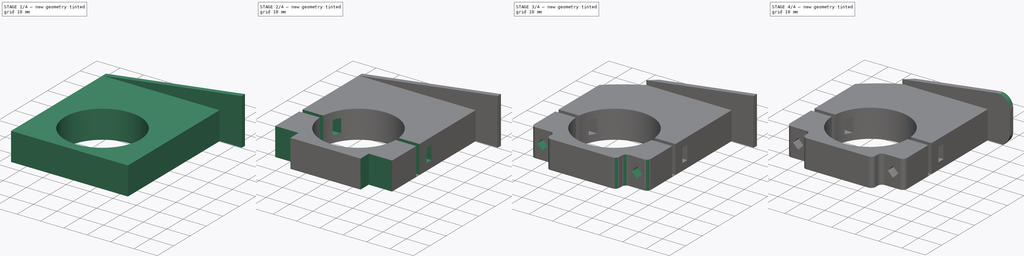
[diagram: build sequence overview — one tinted view per stage of 4, left to right]
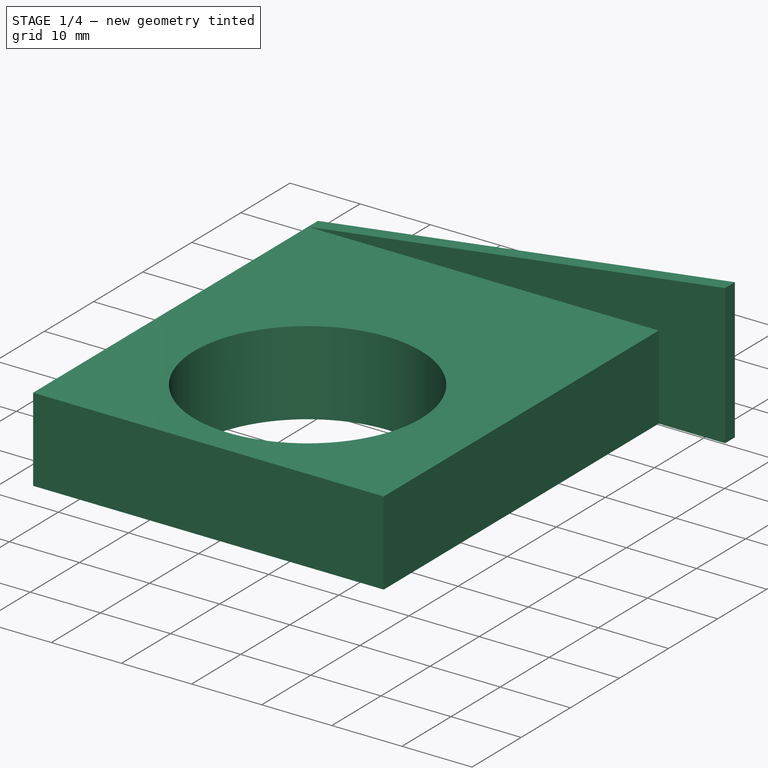
[diagram: stage 1 of 4 — iso view after this stage's code; geometry added in this stage tinted green]
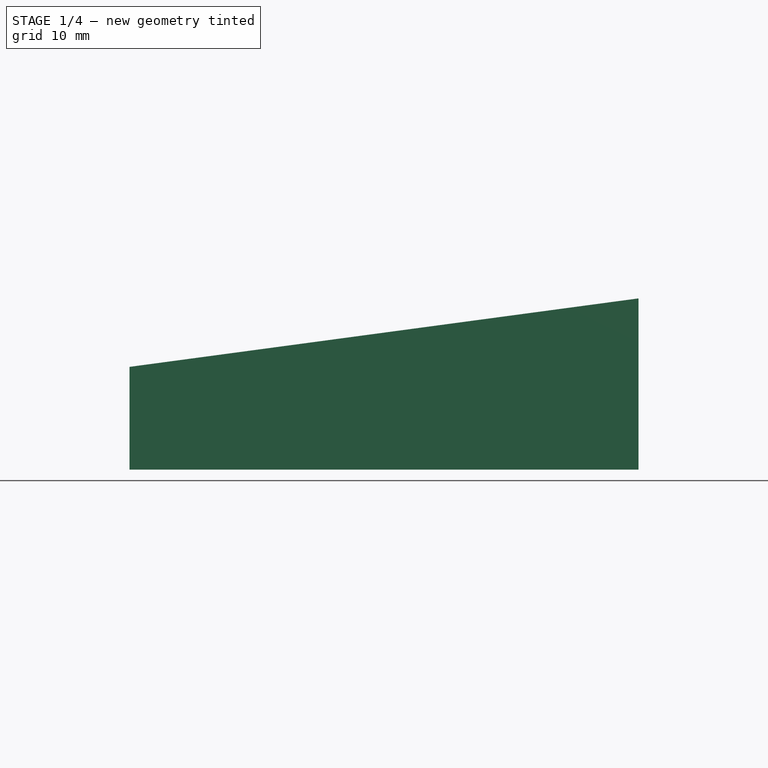
[diagram: stage 1 of 4 — front view after this stage's code; geometry added in this stage tinted green]
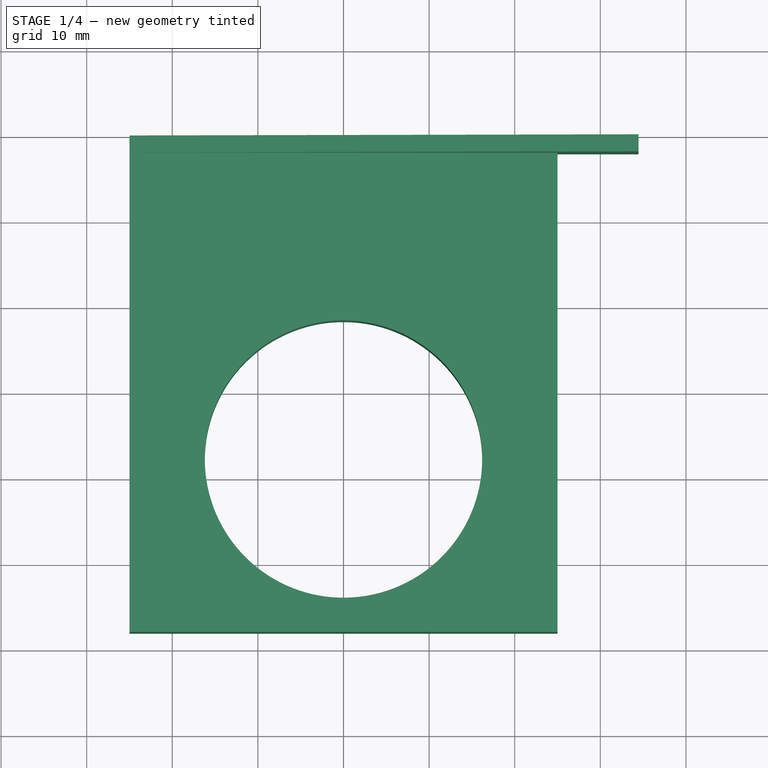
[diagram: stage 1 of 4 — top view after this stage's code; geometry added in this stage tinted green]
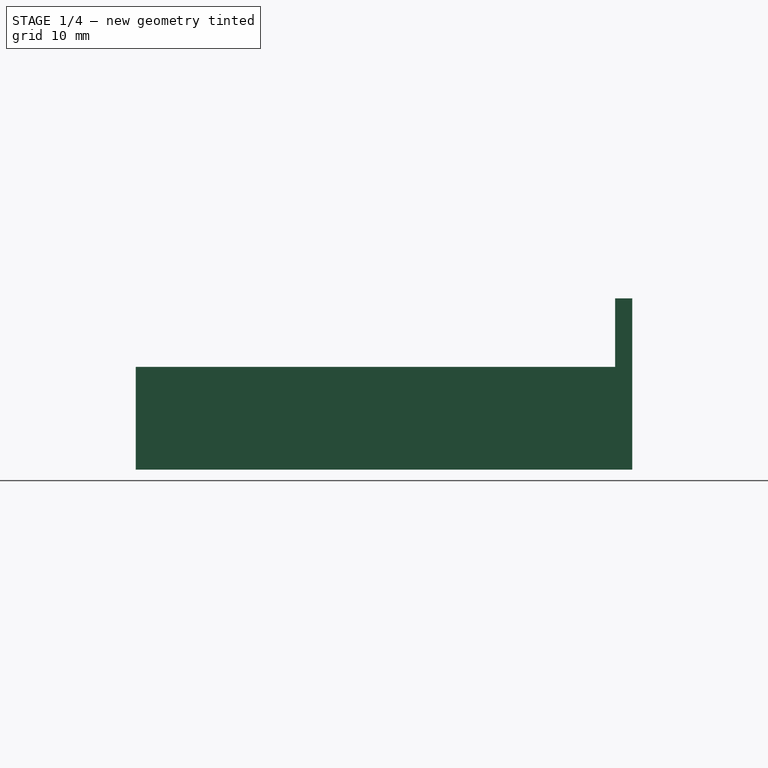
[diagram: stage 1 of 4 — right view after this stage's code; geometry added in this stage tinted green]
FCSTD DOCUMENT  (FreeCAD 0.16R)
Label: cargiblock2-nlg
License: All rights reserved
LicenseURL: http://en.wikipedia.org/wiki/All_rights_reserved
objects: Sketcher::SketchObject×8, PartDesign::Pocket×6, PartDesign::Fillet×3, PartDesign::Pad×2, PartDesign::Chamfer×1
note: 28 computed .brp shape members not serialized (recipe doc carries the construction recipe); baked Part::Feature solids carry a one-line shape summary decoded from their .brp

FEATURE [Sketcher::SketchObject] Sketch
  sketch-geometry (4):
    g0: LineSegment StartX=-25 StartY=28 StartZ=0 EndX=25 EndY=28 EndZ=0
    g1: LineSegment StartX=25 StartY=28 StartZ=0 EndX=25 EndY=-28 EndZ=0
    g2: LineSegment StartX=25 StartY=-28 StartZ=0 EndX=-25 EndY=-28 EndZ=0
    g3: LineSegment StartX=-25 StartY=-28 StartZ=0 EndX=-25 EndY=28 EndZ=0
  constraints (11):
    c: Coincident(g0,g1)
    c: Coincident(g1,g2)
    c: Coincident(g2,g3)
    c: Coincident(g3,g0)
    c: Horizontal(g0)
    c: Horizontal(g2)
    c: Vertical(g1)
    c: Vertical(g3)
    c: Symmetric(g1,g0,g-1)
    c: Distance(g2) = 50
    c: Distance(g1) = 56
FEATURE [PartDesign::Pad] Pad
  Length = 12
  Length2 = 100
  Sketch = -> Sketch
  Type = 0
FEATURE [Sketcher::SketchObject] Sketch001
  ExternalGeometry = -> [Pad]
  Placement = pos=(0,0,12) rot=(0,0,1;0rad)
  Support = -> Pad [Face6]
  sketch-geometry (1):
    g0: Circle CenterX=0 CenterY=-7.8 CenterZ=0 NormalX=0 NormalY=0 NormalZ=1 Radius=16.2
  constraints (3):
    c: PointOnObject(g0,g-2)
    c: Radius(g0) = 16.2
    c: Distance(g0,g-3) = 20.2
FEATURE [PartDesign::Pocket] Pocket
  Length = 5
  Sketch = -> Sketch001
  Type = 1
FEATURE [Sketcher::SketchObject] Sketch009
  Placement = pos=(0,28,0) rot=(0,0.707107,0.707107;3.14159rad)
  Support = -> Pocket [Face1]
  sketch-geometry (4):
    g0: LineSegment StartX=25 StartY=12 StartZ=0 EndX=-34.4643 EndY=20 EndZ=0
    g1: LineSegment StartX=-34.4643 StartY=20 StartZ=0 EndX=-34.4643 EndY=0 EndZ=0
    g2: LineSegment StartX=-34.4643 StartY=0 StartZ=0 EndX=25 EndY=0 EndZ=0
    g3: LineSegment StartX=25 StartY=0 StartZ=0 EndX=25 EndY=12 EndZ=0
  constraints (7):
    c: Coincident(g0,g1)
    c: Vertical(g1)
    c: Coincident(g1,g2)
    c: Coincident(g2,g3)
    c: Coincident(g3,g0)
    c: Distance(g0) = 60
    c: Distance(g1) = 20
FEATURE [PartDesign::Pad] Pad001
  Length = 2
  Length2 = 100
  Sketch = -> Sketch009
  Type = 0
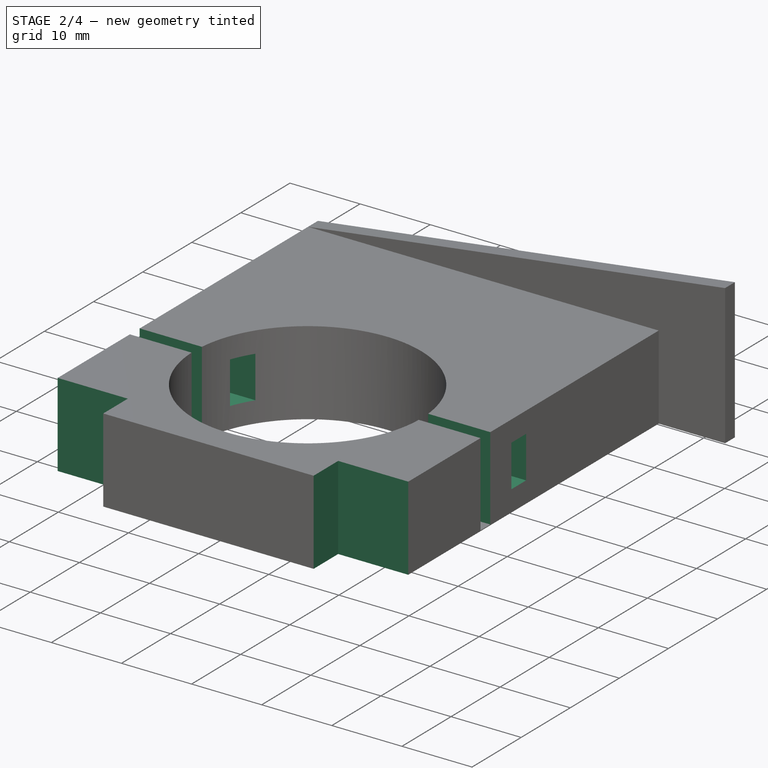
[diagram: stage 2 of 4 — iso view after this stage's code; geometry added in this stage tinted green]
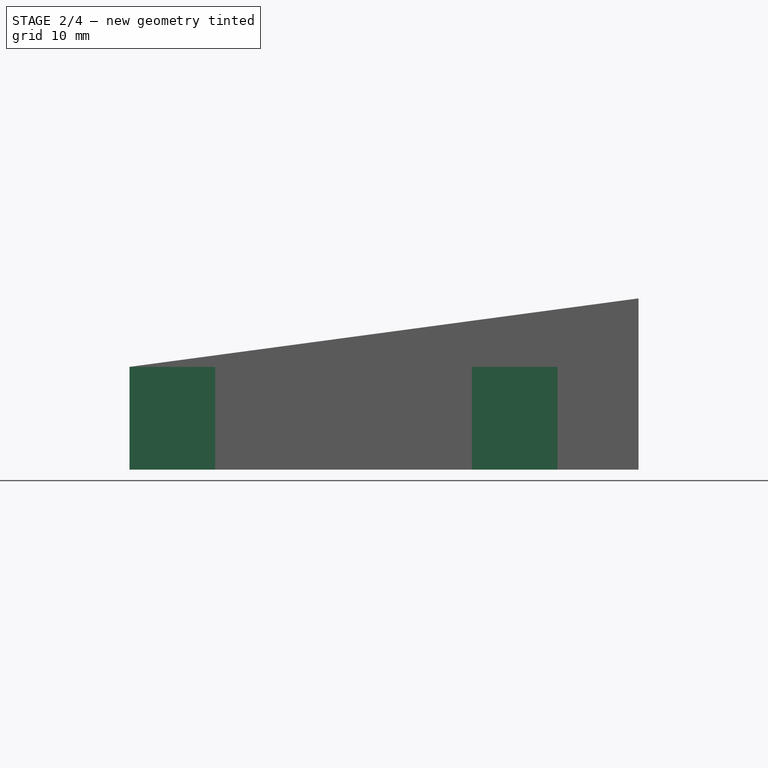
[diagram: stage 2 of 4 — front view after this stage's code; geometry added in this stage tinted green]
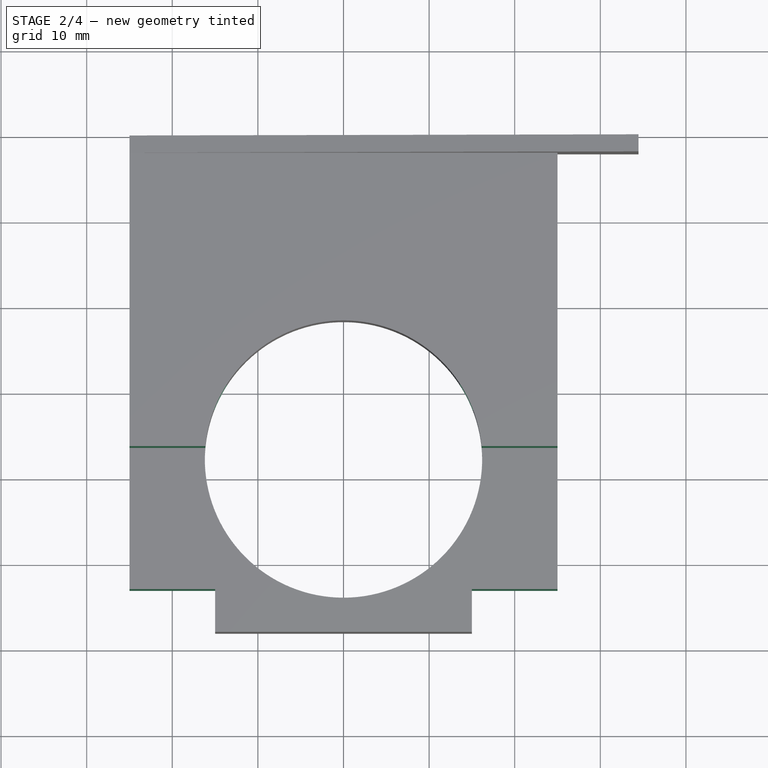
[diagram: stage 2 of 4 — top view after this stage's code; geometry added in this stage tinted green]
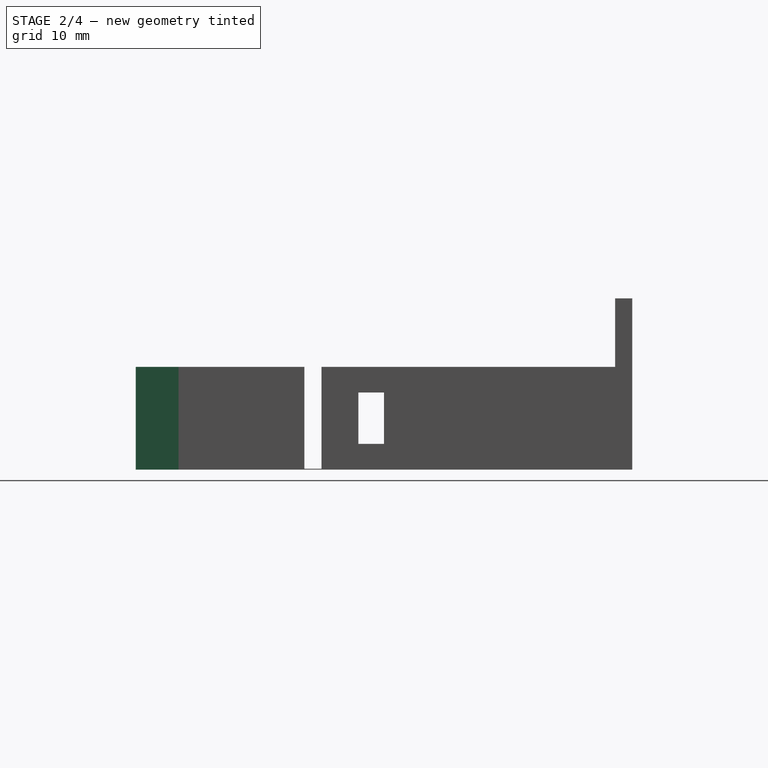
[diagram: stage 2 of 4 — right view after this stage's code; geometry added in this stage tinted green]
FEATURE [Sketcher::SketchObject] Sketch004
  Placement = pos=(0,0,12) rot=(0,0,1;0rad)
  Support = -> Pad001 [Face5]
  sketch-geometry (4):
    g0: LineSegment StartX=-36.7102 StartY=-6.29664 StartZ=0 EndX=35.607 EndY=-6.29664 EndZ=0
    g1: LineSegment StartX=35.607 StartY=-6.29664 StartZ=0 EndX=35.607 EndY=-8.29664 EndZ=0
    g2: LineSegment StartX=35.607 StartY=-8.29664 StartZ=0 EndX=-36.7102 EndY=-8.29664 EndZ=0
    g3: LineSegment StartX=-36.7102 StartY=-8.29664 StartZ=0 EndX=-36.7102 EndY=-6.29664 EndZ=0
  constraints (9):
    c: Coincident(g0,g1)
    c: Coincident(g1,g2)
    c: Coincident(g2,g3)
    c: Coincident(g3,g0)
    c: Horizontal(g0)
    c: Horizontal(g2)
    c: Vertical(g1)
    c: Vertical(g3)
    c: Distance(g1) = 2
FEATURE [PartDesign::Pocket] Pocket001
  Length = 11.9
  Sketch = -> Sketch004
  Type = 0
FEATURE [Sketcher::SketchObject] Sketch005
  Placement = pos=(0,-28,0) rot=(1,0,0;1.5708rad)
  Support = -> Pocket001 [Face1]
  sketch-geometry (8):
    g0: LineSegment StartX=-40.0409 StartY=13.5056 StartZ=0 EndX=-15 EndY=13.5056 EndZ=0
    g1: LineSegment StartX=-15 StartY=13.5056 StartZ=0 EndX=-15 EndY=-4.18064 EndZ=0
    g2: LineSegment StartX=-15 StartY=-4.18064 StartZ=0 EndX=-40.0409 EndY=-4.18064 EndZ=0
    g3: LineSegment StartX=-40.0409 StartY=-4.18064 StartZ=0 EndX=-40.0409 EndY=13.5056 EndZ=0
    g4: LineSegment StartX=15 StartY=21.4233 StartZ=0 EndX=27.2081 EndY=21.4233 EndZ=0
    g5: LineSegment StartX=27.2081 StartY=21.4233 StartZ=0 EndX=27.2081 EndY=-29.1676 EndZ=0
    g6: LineSegment StartX=27.2081 StartY=-29.1676 StartZ=0 EndX=15 EndY=-29.1676 EndZ=0
    g7: LineSegment StartX=15 StartY=-29.1676 StartZ=0 EndX=15 EndY=21.4233 EndZ=0
  constraints (16):
    c: Coincident(g0,g1)
    c: Coincident(g1,g2)
    c: Coincident(g2,g3)
    c: Coincident(g3,g0)
    c: Horizontal(g0)
    c: Horizontal(g2)
    c: Vertical(g1)
    c: Vertical(g3)
    c: Coincident(g4,g5)
    c: Coincident(g5,g6)
    c: Coincident(g6,g7)
    c: Coincident(g7,g4)
    c: Horizontal(g4)
    c: Horizontal(g6)
    c: Vertical(g5)
    c: Vertical(g7)
FEATURE [PartDesign::Pocket] Pocket002
  Length = 5
  Sketch = -> Sketch005
  Type = 0
FEATURE [Sketcher::SketchObject] Sketch003
  Placement = pos=(25,0,0) rot=(0.57735,0.57735,0.57735;2.0944rad)
  Support = -> Pocket002 [Face10]
  sketch-geometry (4):
    g0: LineSegment StartX=-2 StartY=9 StartZ=0 EndX=1 EndY=9 EndZ=0
    g1: LineSegment StartX=1 StartY=9 StartZ=0 EndX=1 EndY=3 EndZ=0
    g2: LineSegment StartX=1 StartY=3 StartZ=0 EndX=-2 EndY=3 EndZ=0
    g3: LineSegment StartX=-2 StartY=3 StartZ=0 EndX=-2 EndY=9 EndZ=0
  constraints (12):
    c: Coincident(g0,g1)
    c: Coincident(g1,g2)
    c: Coincident(g2,g3)
    c: Coincident(g3,g0)
    c: Horizontal(g0)
    c: Horizontal(g2)
    c: Vertical(g1)
    c: Vertical(g3)
    c: Distance(g3) = 6
    c: Distance(g2) = 3
    c: DistanceY(g-1,g1) = 3
    c: DistanceX(g-2,g0) = -2
FEATURE [PartDesign::Pocket] Pocket003
  Length = 5
  Sketch = -> Sketch003
  Type = 1
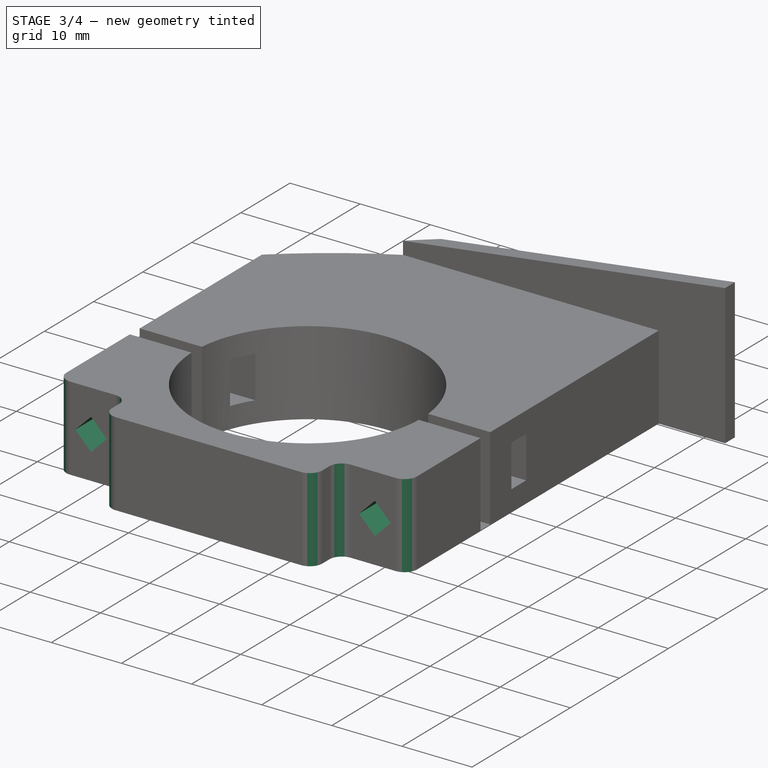
[diagram: stage 3 of 4 — iso view after this stage's code; geometry added in this stage tinted green]
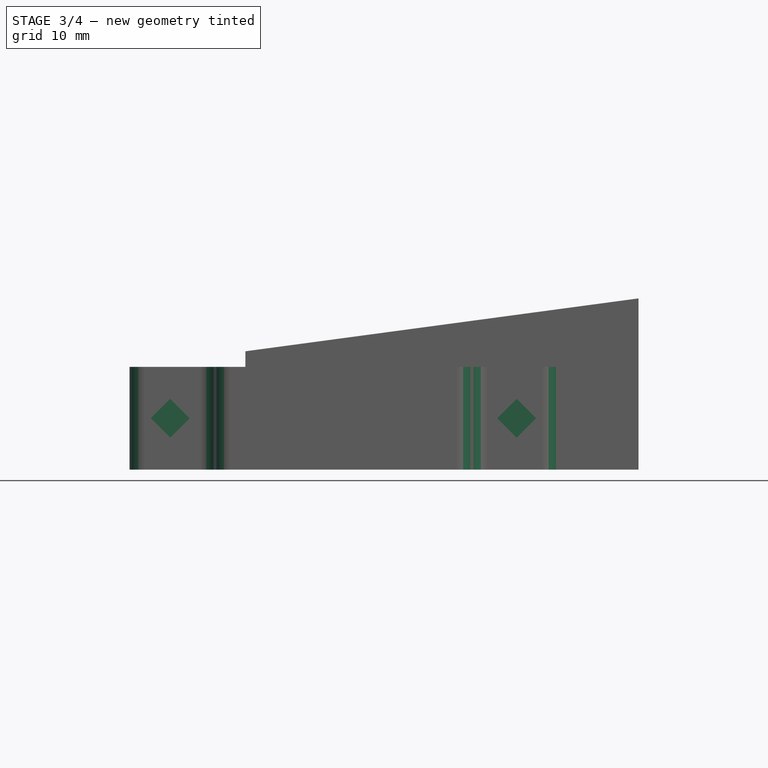
[diagram: stage 3 of 4 — front view after this stage's code; geometry added in this stage tinted green]
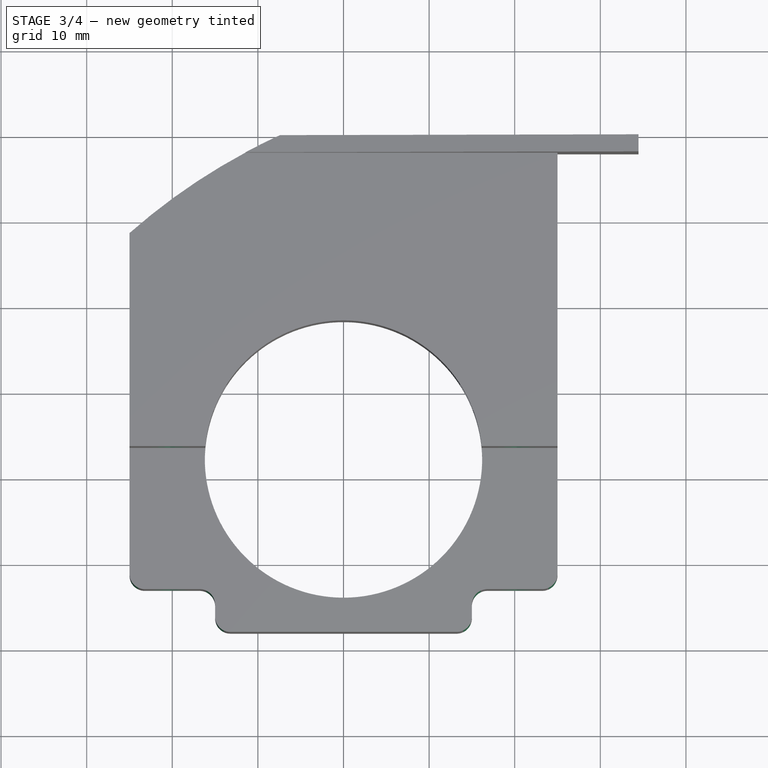
[diagram: stage 3 of 4 — top view after this stage's code; geometry added in this stage tinted green]
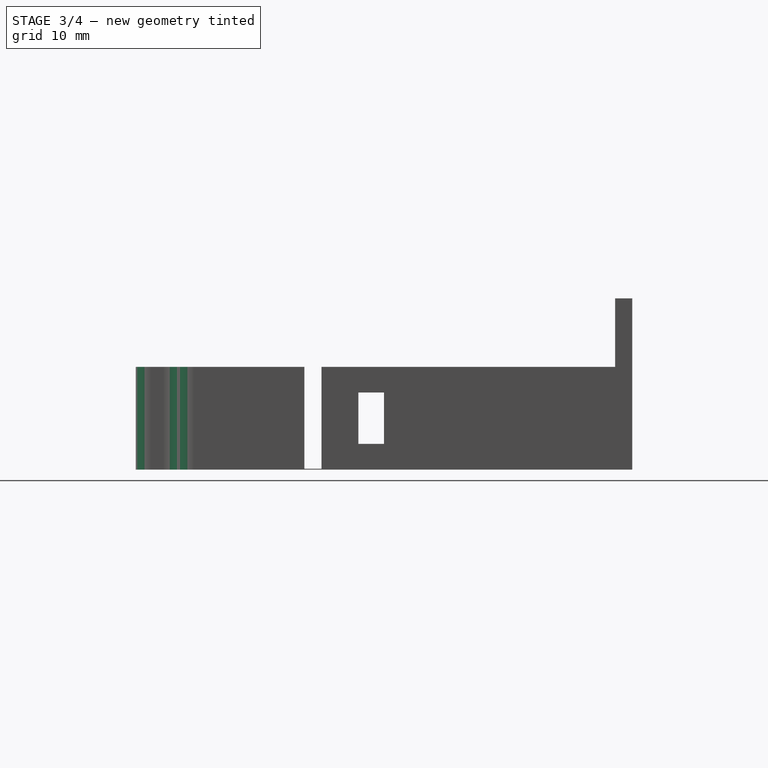
[diagram: stage 3 of 4 — right view after this stage's code; geometry added in this stage tinted green]
FEATURE [Sketcher::SketchObject] Sketch002
  Placement = pos=(0,-23,0) rot=(1,0,0;1.5708rad)
  Support = -> Pocket003 [Face8]
  sketch-geometry (8):
    g0: LineSegment StartX=-22.5 StartY=6 StartZ=0 EndX=-20.2373 EndY=8.26274 EndZ=0
    g1: LineSegment StartX=-20.2373 StartY=8.26274 StartZ=0 EndX=-17.9745 EndY=6 EndZ=0
    g2: LineSegment StartX=-17.9745 StartY=6 StartZ=0 EndX=-20.2373 EndY=3.73726 EndZ=0
    g3: LineSegment StartX=-20.2373 StartY=3.73726 StartZ=0 EndX=-22.5 EndY=6 EndZ=0
    g4: LineSegment StartX=17.9745 StartY=6 StartZ=0 EndX=20.2373 EndY=8.26274 EndZ=0
    g5: LineSegment StartX=20.2373 StartY=8.26274 StartZ=0 EndX=22.5 EndY=6 EndZ=0
    g6: LineSegment StartX=22.5 StartY=6 StartZ=0 EndX=20.2373 EndY=3.73726 EndZ=0
    g7: LineSegment StartX=20.2373 StartY=3.73726 StartZ=0 EndX=17.9745 EndY=6 EndZ=0
  constraints (20):
    c: Coincident(g0,g1)
    c: Coincident(g1,g2)
    c: Coincident(g2,g3)
    c: Coincident(g3,g0)
    c: Coincident(g4,g5)
    c: Coincident(g5,g6)
    c: Coincident(g6,g7)
    c: Coincident(g7,g4)
    c: Equal(g5,g6)
    c: Equal(g6,g2)
    c: Equal(g2,g3)
    c: Distance(g5) = 3.2
    c: Perpendicular(g1,g2)
    c: Perpendicular(g5,g6)
    c: Perpendicular(g4,g7)
    c: Perpendicular(g0,g3)
    c: Equal(g7,g5)
    c: Equal(g0,g2)
    c: Angle(g4) = 0.785398
    c: Angle(g0) = 0.785398
FEATURE [PartDesign::Pocket] Pocket004
  Length = 35
  Sketch = -> Sketch002
  Type = 0
FEATURE [PartDesign::Fillet] Fillet
  Base = -> Pocket004 [Edge4,Edge23,Edge42,Edge2,Edge13,Edge28]
  Radius = 1.8
FEATURE [Sketcher::SketchObject] Sketch010
  Placement = pos=(0,0,0) rot=(1,0,0;3.14159rad)
  Support = -> Fillet [Face2]
  sketch-geometry (3):
    g0: ArcOfCircle CenterX=22.3007 CenterY=35.0589 CenterZ=0 NormalX=0 NormalY=0 NormalZ=1 Radius=71.5282 StartAngle=3.77489 EndAngle=4.59259
    g1: LineSegment StartX=13.7519 StartY=-35.9566 StartZ=0 EndX=-64.8306 EndY=-41.4878 EndZ=0
    g2: LineSegment StartX=-64.8306 StartY=-41.4878 StartZ=0 EndX=-35.3566 EndY=-7.27204 EndZ=0
  constraints (3):
    c: Coincident(g0,g1)
    c: Coincident(g1,g2)
    c: Coincident(g2,g0)
FEATURE [PartDesign::Pocket] Pocket005
  Length = 5
  Sketch = -> Sketch010
  Type = 1
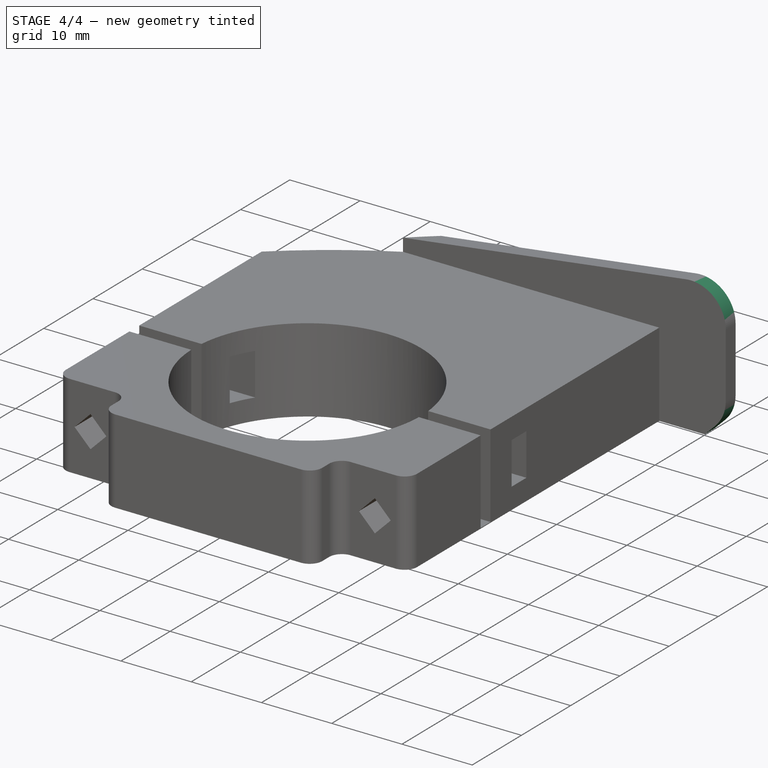
[diagram: stage 4 of 4 — iso view after this stage's code; geometry added in this stage tinted green]
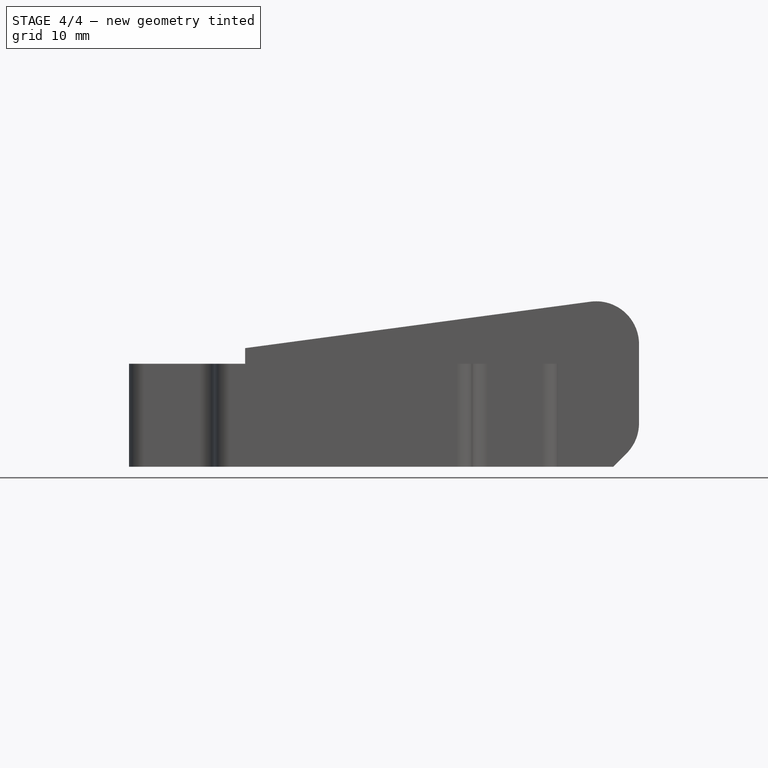
[diagram: stage 4 of 4 — front view after this stage's code; geometry added in this stage tinted green]
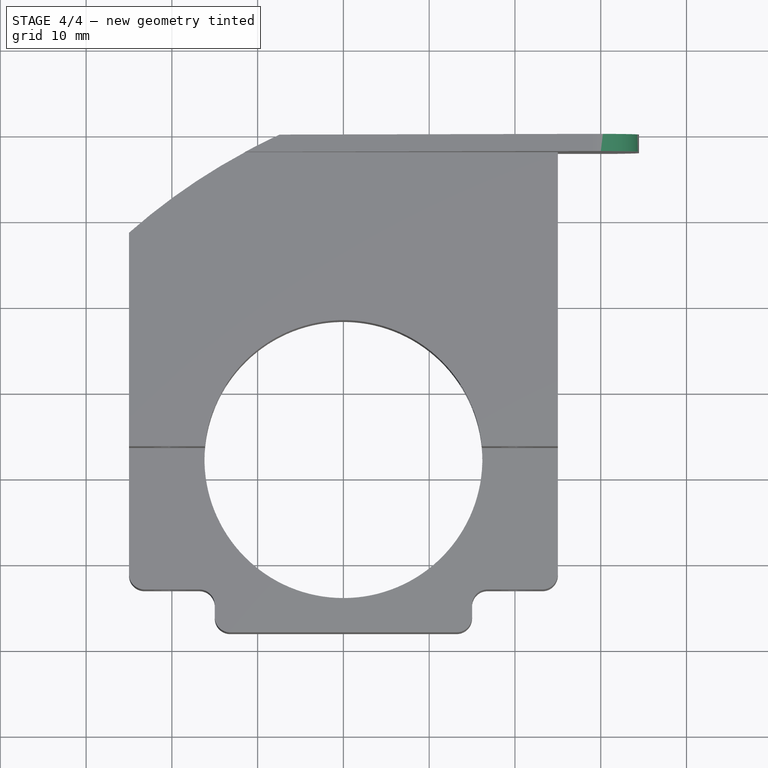
[diagram: stage 4 of 4 — top view after this stage's code; geometry added in this stage tinted green]
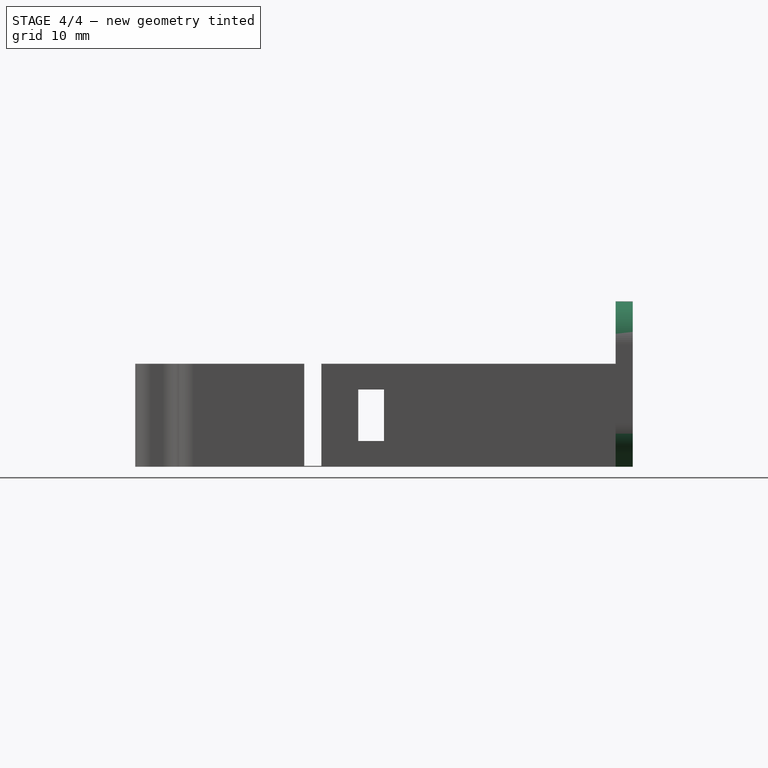
[diagram: stage 4 of 4 — right view after this stage's code; geometry added in this stage tinted green]
FEATURE [PartDesign::Chamfer] Chamfer
  Base = -> Pocket005 [Edge65]
  Size = 3
FEATURE [PartDesign::Fillet] Fillet001
  Base = -> Chamfer [Edge45]
  Radius = 5
FEATURE [PartDesign::Fillet] Fillet002
  Base = -> Fillet001 [Edge10]
  Radius = 5
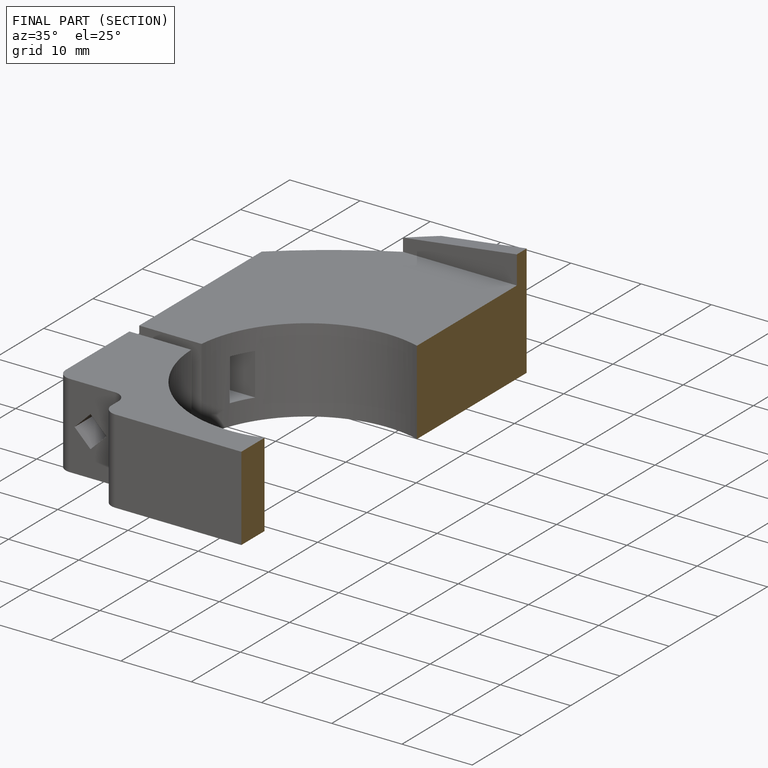
[diagram: finished part — half-section view (interior)]
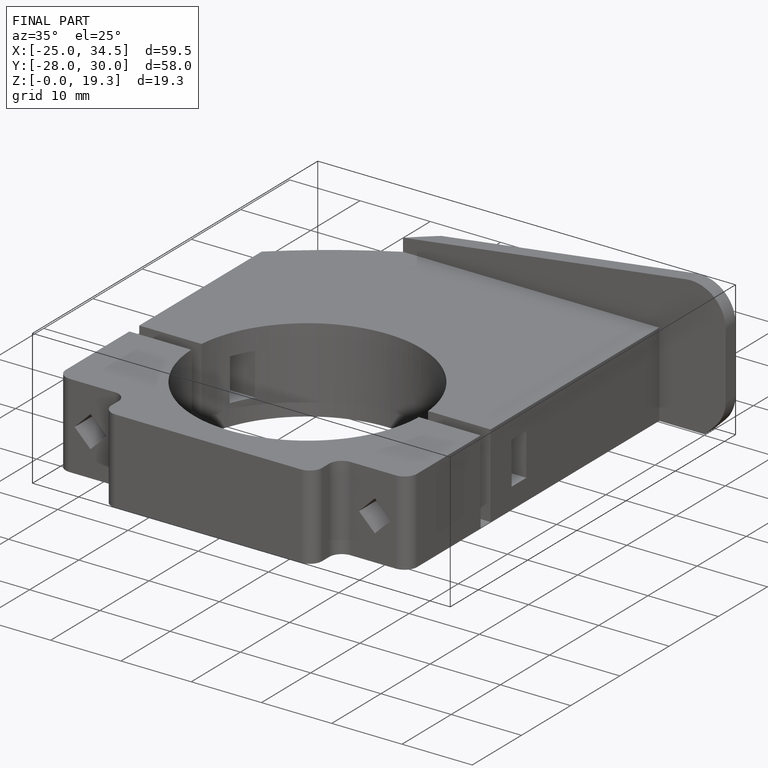
[diagram: finished part — iso view with bounding-box wireframe]
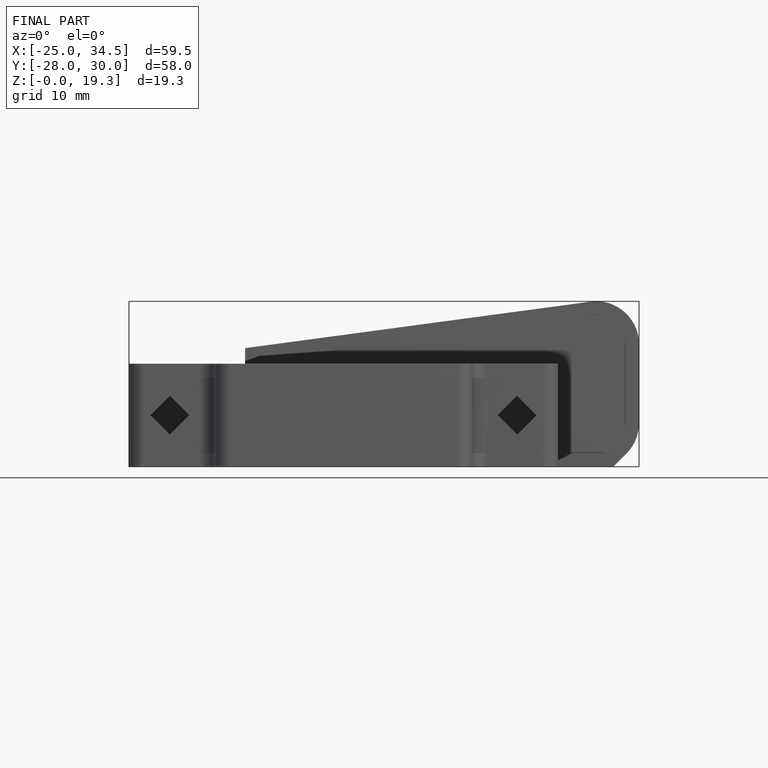
[diagram: finished part — front view with bounding-box wireframe]
